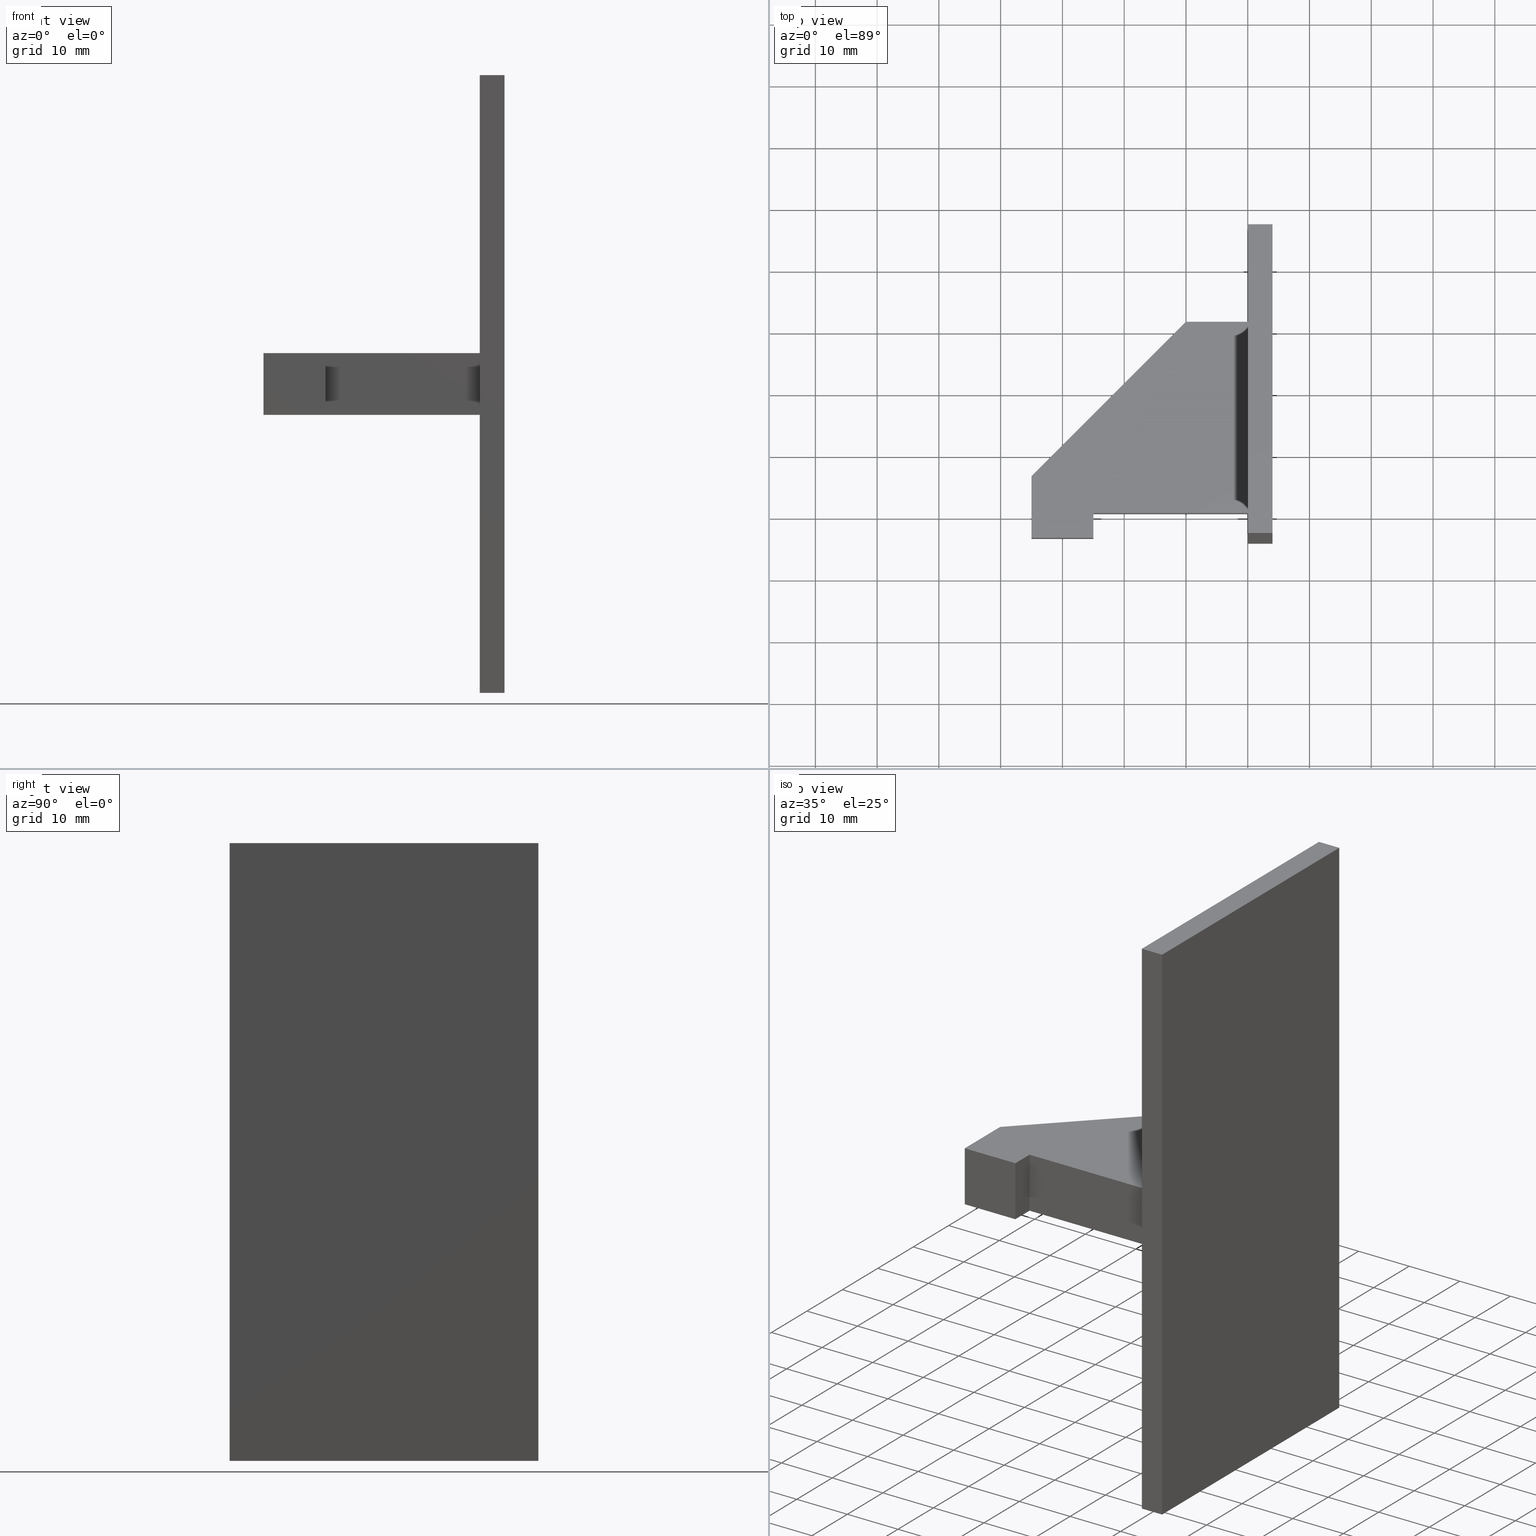
[diagram: canonical four-view strip — front | top / right | iso, engineering-drawing reading convention]
A machine part, canonical four-view strip (front | top / right | iso — engineering-drawing reading convention). The complete STEP part file that produces these views, byte-faithful:
ISO-10303-21;
HEADER;
/* Generated by software containing ST-Developer
 * from STEP Tools, Inc. (www.steptools.com) 
 */

FILE_DESCRIPTION(
/* description */ (''),
/* implementation_level */ '2;1');

FILE_NAME(
/* name */ 'E_3_01_06_08_00_WKZ-0170.stp',
/* time_stamp */ '2025-11-24T12:50:59+01:00',
/* author */ ('d.fischer'),
/* organization */ (''),
/* preprocessor_version */ 'ST-DEVELOPER v20',
/* originating_system */ 'Autodesk Inventor 2025',
/* authorisation */ '');

FILE_SCHEMA (('AUTOMOTIVE_DESIGN { 1 0 10303 214 3 1 1 }'));
ENDSEC;

DATA;
#10=MECHANICAL_DESIGN_GEOMETRIC_PRESENTATION_REPRESENTATION('',(#14,#15),
#434);
#11=SHAPE_REPRESENTATION_RELATIONSHIP('SRR','None',#441,#12);
#12=ADVANCED_BREP_SHAPE_REPRESENTATION('',(#13),#433);
#13=MANIFOLD_SOLID_BREP('Volumenk\X\F6rper1',#261);
#14=STYLED_ITEM('',(#451),#251);
#15=STYLED_ITEM('',(#450),#13);
#16=FACE_BOUND('',#32,.T.);
#17=FACE_OUTER_BOUND('',#31,.T.);
#18=FACE_OUTER_BOUND('',#33,.T.);
#19=FACE_OUTER_BOUND('',#34,.T.);
#20=FACE_OUTER_BOUND('',#35,.T.);
#21=FACE_OUTER_BOUND('',#36,.T.);
#22=FACE_OUTER_BOUND('',#37,.T.);
#23=FACE_OUTER_BOUND('',#38,.T.);
#24=FACE_OUTER_BOUND('',#39,.T.);
#25=FACE_OUTER_BOUND('',#40,.T.);
#26=FACE_OUTER_BOUND('',#41,.T.);
#27=FACE_OUTER_BOUND('',#42,.T.);
#28=FACE_OUTER_BOUND('',#43,.T.);
#29=FACE_OUTER_BOUND('',#44,.T.);
#30=FACE_OUTER_BOUND('',#45,.T.);
#31=EDGE_LOOP('',(#167,#168,#169,#170));
#32=EDGE_LOOP('',(#171,#172,#173,#174));
#33=EDGE_LOOP('',(#175,#176,#177,#178));
#34=EDGE_LOOP('',(#179,#180,#181,#182));
#35=EDGE_LOOP('',(#183,#184,#185,#186));
#36=EDGE_LOOP('',(#187,#188,#189,#190));
#37=EDGE_LOOP('',(#191,#192,#193,#194));
#38=EDGE_LOOP('',(#195,#196,#197,#198,#199,#200,#201));
#39=EDGE_LOOP('',(#202,#203,#204,#205));
#40=EDGE_LOOP('',(#206,#207,#208,#209));
#41=EDGE_LOOP('',(#210,#211,#212,#213));
#42=EDGE_LOOP('',(#214,#215,#216,#217));
#43=EDGE_LOOP('',(#218,#219,#220,#221));
#44=EDGE_LOOP('',(#222,#223,#224,#225));
#45=EDGE_LOOP('',(#226,#227,#228,#229,#230,#231,#232));
#46=LINE('',#365,#79);
#47=LINE('',#367,#80);
#48=LINE('',#369,#81);
#49=LINE('',#370,#82);
#50=LINE('',#373,#83);
#51=LINE('',#375,#84);
#52=LINE('',#377,#85);
#53=LINE('',#378,#86);
#54=LINE('',#382,#87);
#55=LINE('',#383,#88);
#56=LINE('',#384,#89);
#57=LINE('',#387,#90);
#58=LINE('',#388,#91);
#59=LINE('',#391,#92);
#60=LINE('',#392,#93);
#61=LINE('',#394,#94);
#62=LINE('',#398,#95);
#63=LINE('',#400,#96);
#64=LINE('',#402,#97);
#65=LINE('',#404,#98);
#66=LINE('',#406,#99);
#67=LINE('',#407,#100);
#68=LINE('',#411,#101);
#69=LINE('',#412,#102);
#70=LINE('',#413,#103);
#71=LINE('',#416,#104);
#72=LINE('',#417,#105);
#73=LINE('',#420,#106);
#74=LINE('',#421,#107);
#75=LINE('',#424,#108);
#76=LINE('',#425,#109);
#77=LINE('',#427,#110);
#78=LINE('',#429,#111);
#79=VECTOR('',#302,10.);
#80=VECTOR('',#303,10.);
#81=VECTOR('',#304,10.);
#82=VECTOR('',#305,10.);
#83=VECTOR('',#306,10.);
#84=VECTOR('',#307,10.);
#85=VECTOR('',#308,10.);
#86=VECTOR('',#309,10.);
#87=VECTOR('',#312,10.);
#88=VECTOR('',#313,10.);
#89=VECTOR('',#314,10.);
#90=VECTOR('',#317,10.);
#91=VECTOR('',#318,10.);
#92=VECTOR('',#321,10.);
#93=VECTOR('',#322,10.);
#94=VECTOR('',#325,10.);
#95=VECTOR('',#330,10.);
#96=VECTOR('',#331,10.);
#97=VECTOR('',#332,10.);
#98=VECTOR('',#333,10.);
#99=VECTOR('',#334,10.);
#100=VECTOR('',#335,10.);
#101=VECTOR('',#338,10.);
#102=VECTOR('',#339,10.);
#103=VECTOR('',#340,10.);
#104=VECTOR('',#343,10.);
#105=VECTOR('',#344,10.);
#106=VECTOR('',#347,10.);
#107=VECTOR('',#348,10.);
#108=VECTOR('',#351,10.);
#109=VECTOR('',#352,10.);
#110=VECTOR('',#355,10.);
#111=VECTOR('',#358,10.);
#112=VERTEX_POINT('',#363);
#113=VERTEX_POINT('',#364);
#114=VERTEX_POINT('',#366);
#115=VERTEX_POINT('',#368);
#116=VERTEX_POINT('',#371);
#117=VERTEX_POINT('',#372);
#118=VERTEX_POINT('',#374);
#119=VERTEX_POINT('',#376);
#120=VERTEX_POINT('',#380);
#121=VERTEX_POINT('',#381);
#122=VERTEX_POINT('',#386);
#123=VERTEX_POINT('',#390);
#124=VERTEX_POINT('',#397);
#125=VERTEX_POINT('',#399);
#126=VERTEX_POINT('',#401);
#127=VERTEX_POINT('',#403);
#128=VERTEX_POINT('',#405);
#129=VERTEX_POINT('',#409);
#130=VERTEX_POINT('',#410);
#131=VERTEX_POINT('',#415);
#132=VERTEX_POINT('',#419);
#133=VERTEX_POINT('',#423);
#134=EDGE_CURVE('',#112,#113,#46,.T.);
#135=EDGE_CURVE('',#114,#112,#47,.T.);
#136=EDGE_CURVE('',#115,#114,#48,.T.);
#137=EDGE_CURVE('',#113,#115,#49,.T.);
#138=EDGE_CURVE('',#116,#117,#50,.T.);
#139=EDGE_CURVE('',#118,#117,#51,.T.);
#140=EDGE_CURVE('',#118,#119,#52,.T.);
#141=EDGE_CURVE('',#116,#119,#53,.T.);
#142=EDGE_CURVE('',#120,#121,#54,.T.);
#143=EDGE_CURVE('',#114,#121,#55,.T.);
#144=EDGE_CURVE('',#112,#120,#56,.T.);
#145=EDGE_CURVE('',#121,#122,#57,.T.);
#146=EDGE_CURVE('',#115,#122,#58,.T.);
#147=EDGE_CURVE('',#122,#123,#59,.T.);
#148=EDGE_CURVE('',#113,#123,#60,.T.);
#149=EDGE_CURVE('',#123,#120,#61,.T.);
#150=EDGE_CURVE('',#124,#116,#62,.T.);
#151=EDGE_CURVE('',#125,#124,#63,.T.);
#152=EDGE_CURVE('',#126,#125,#64,.T.);
#153=EDGE_CURVE('',#127,#126,#65,.T.);
#154=EDGE_CURVE('',#128,#127,#66,.T.);
#155=EDGE_CURVE('',#117,#128,#67,.T.);
#156=EDGE_CURVE('',#129,#130,#68,.T.);
#157=EDGE_CURVE('',#130,#125,#69,.T.);
#158=EDGE_CURVE('',#129,#124,#70,.T.);
#159=EDGE_CURVE('',#130,#131,#71,.T.);
#160=EDGE_CURVE('',#131,#126,#72,.T.);
#161=EDGE_CURVE('',#131,#132,#73,.T.);
#162=EDGE_CURVE('',#132,#127,#74,.T.);
#163=EDGE_CURVE('',#132,#133,#75,.T.);
#164=EDGE_CURVE('',#133,#128,#76,.T.);
#165=EDGE_CURVE('',#133,#118,#77,.T.);
#166=EDGE_CURVE('',#119,#129,#78,.T.);
#167=ORIENTED_EDGE('',*,*,#134,.F.);
#168=ORIENTED_EDGE('',*,*,#135,.F.);
#169=ORIENTED_EDGE('',*,*,#136,.F.);
#170=ORIENTED_EDGE('',*,*,#137,.F.);
#171=ORIENTED_EDGE('',*,*,#138,.T.);
#172=ORIENTED_EDGE('',*,*,#139,.F.);
#173=ORIENTED_EDGE('',*,*,#140,.T.);
#174=ORIENTED_EDGE('',*,*,#141,.F.);
#175=ORIENTED_EDGE('',*,*,#142,.T.);
#176=ORIENTED_EDGE('',*,*,#143,.F.);
#177=ORIENTED_EDGE('',*,*,#135,.T.);
#178=ORIENTED_EDGE('',*,*,#144,.T.);
#179=ORIENTED_EDGE('',*,*,#145,.T.);
#180=ORIENTED_EDGE('',*,*,#146,.F.);
#181=ORIENTED_EDGE('',*,*,#136,.T.);
#182=ORIENTED_EDGE('',*,*,#143,.T.);
#183=ORIENTED_EDGE('',*,*,#147,.T.);
#184=ORIENTED_EDGE('',*,*,#148,.F.);
#185=ORIENTED_EDGE('',*,*,#137,.T.);
#186=ORIENTED_EDGE('',*,*,#146,.T.);
#187=ORIENTED_EDGE('',*,*,#149,.T.);
#188=ORIENTED_EDGE('',*,*,#144,.F.);
#189=ORIENTED_EDGE('',*,*,#134,.T.);
#190=ORIENTED_EDGE('',*,*,#148,.T.);
#191=ORIENTED_EDGE('',*,*,#142,.F.);
#192=ORIENTED_EDGE('',*,*,#149,.F.);
#193=ORIENTED_EDGE('',*,*,#147,.F.);
#194=ORIENTED_EDGE('',*,*,#145,.F.);
#195=ORIENTED_EDGE('',*,*,#138,.F.);
#196=ORIENTED_EDGE('',*,*,#150,.F.);
#197=ORIENTED_EDGE('',*,*,#151,.F.);
#198=ORIENTED_EDGE('',*,*,#152,.F.);
#199=ORIENTED_EDGE('',*,*,#153,.F.);
#200=ORIENTED_EDGE('',*,*,#154,.F.);
#201=ORIENTED_EDGE('',*,*,#155,.F.);
#202=ORIENTED_EDGE('',*,*,#156,.T.);
#203=ORIENTED_EDGE('',*,*,#157,.T.);
#204=ORIENTED_EDGE('',*,*,#151,.T.);
#205=ORIENTED_EDGE('',*,*,#158,.F.);
#206=ORIENTED_EDGE('',*,*,#159,.T.);
#207=ORIENTED_EDGE('',*,*,#160,.T.);
#208=ORIENTED_EDGE('',*,*,#152,.T.);
#209=ORIENTED_EDGE('',*,*,#157,.F.);
#210=ORIENTED_EDGE('',*,*,#161,.T.);
#211=ORIENTED_EDGE('',*,*,#162,.T.);
#212=ORIENTED_EDGE('',*,*,#153,.T.);
#213=ORIENTED_EDGE('',*,*,#160,.F.);
#214=ORIENTED_EDGE('',*,*,#163,.T.);
#215=ORIENTED_EDGE('',*,*,#164,.T.);
#216=ORIENTED_EDGE('',*,*,#154,.T.);
#217=ORIENTED_EDGE('',*,*,#162,.F.);
#218=ORIENTED_EDGE('',*,*,#165,.T.);
#219=ORIENTED_EDGE('',*,*,#139,.T.);
#220=ORIENTED_EDGE('',*,*,#155,.T.);
#221=ORIENTED_EDGE('',*,*,#164,.F.);
#222=ORIENTED_EDGE('',*,*,#166,.T.);
#223=ORIENTED_EDGE('',*,*,#158,.T.);
#224=ORIENTED_EDGE('',*,*,#150,.T.);
#225=ORIENTED_EDGE('',*,*,#141,.T.);
#226=ORIENTED_EDGE('',*,*,#156,.F.);
#227=ORIENTED_EDGE('',*,*,#166,.F.);
#228=ORIENTED_EDGE('',*,*,#140,.F.);
#229=ORIENTED_EDGE('',*,*,#165,.F.);
#230=ORIENTED_EDGE('',*,*,#163,.F.);
#231=ORIENTED_EDGE('',*,*,#161,.F.);
#232=ORIENTED_EDGE('',*,*,#159,.F.);
#233=PLANE('',#284);
#234=PLANE('',#285);
#235=PLANE('',#286);
#236=PLANE('',#287);
#237=PLANE('',#288);
#238=PLANE('',#289);
#239=PLANE('',#290);
#240=PLANE('',#291);
#241=PLANE('',#292);
#242=PLANE('',#293);
#243=PLANE('',#294);
#244=PLANE('',#295);
#245=PLANE('',#296);
#246=PLANE('',#297);
#247=ADVANCED_FACE('',(#17,#16),#233,.F.);
#248=ADVANCED_FACE('',(#18),#234,.T.);
#249=ADVANCED_FACE('',(#19),#235,.T.);
#250=ADVANCED_FACE('',(#20),#236,.T.);
#251=ADVANCED_FACE('',(#21),#237,.T.);
#252=ADVANCED_FACE('',(#22),#238,.T.);
#253=ADVANCED_FACE('',(#23),#239,.F.);
#254=ADVANCED_FACE('',(#24),#240,.T.);
#255=ADVANCED_FACE('',(#25),#241,.T.);
#256=ADVANCED_FACE('',(#26),#242,.T.);
#257=ADVANCED_FACE('',(#27),#243,.T.);
#258=ADVANCED_FACE('',(#28),#244,.T.);
#259=ADVANCED_FACE('',(#29),#245,.T.);
#260=ADVANCED_FACE('',(#30),#246,.T.);
#261=CLOSED_SHELL('',(#247,#248,#249,#250,#251,#252,#253,#254,#255,#256,
#257,#258,#259,#260));
#262=DERIVED_UNIT_ELEMENT(#265,1.);
#263=DERIVED_UNIT_ELEMENT(#436,-3.);
#264=DIMENSIONAL_EXPONENTS(0.,1.,0.,0.,0.,0.,0.);
#265=(
CONVERSION_BASED_UNIT('gram',#267)
MASS_UNIT()
NAMED_UNIT(#264)
);
#266=(
MASS_UNIT()
NAMED_UNIT(*)
SI_UNIT(.KILO.,.GRAM.)
);
#267=MASS_MEASURE_WITH_UNIT(MASS_MEASURE(0.001),#266);
#268=DERIVED_UNIT((#262,#263));
#269=MEASURE_REPRESENTATION_ITEM('density measure',
POSITIVE_RATIO_MEASURE(8.03),#268);
#270=PROPERTY_DEFINITION_REPRESENTATION(#275,#272);
#271=PROPERTY_DEFINITION_REPRESENTATION(#276,#273);
#272=REPRESENTATION('material name',(#274),#433);
#273=REPRESENTATION('density',(#269),#433);
#274=DESCRIPTIVE_REPRESENTATION_ITEM('1.4301','1.4301');
#275=PROPERTY_DEFINITION('material property','material name',#443);
#276=PROPERTY_DEFINITION('material property','density of part',#443);
#277=DATE_TIME_ROLE('creation_date');
#278=APPLIED_DATE_AND_TIME_ASSIGNMENT(#279,#277,(#443));
#279=DATE_AND_TIME(#280,#281);
#280=CALENDAR_DATE(2011,8,11);
#281=LOCAL_TIME(0,0,0.,#282);
#282=COORDINATED_UNIVERSAL_TIME_OFFSET(0,0,.BEHIND.);
#283=AXIS2_PLACEMENT_3D('',#361,#298,#299);
#284=AXIS2_PLACEMENT_3D('',#362,#300,#301);
#285=AXIS2_PLACEMENT_3D('',#379,#310,#311);
#286=AXIS2_PLACEMENT_3D('',#385,#315,#316);
#287=AXIS2_PLACEMENT_3D('',#389,#319,#320);
#288=AXIS2_PLACEMENT_3D('',#393,#323,#324);
#289=AXIS2_PLACEMENT_3D('',#395,#326,#327);
#290=AXIS2_PLACEMENT_3D('',#396,#328,#329);
#291=AXIS2_PLACEMENT_3D('',#408,#336,#337);
#292=AXIS2_PLACEMENT_3D('',#414,#341,#342);
#293=AXIS2_PLACEMENT_3D('',#418,#345,#346);
#294=AXIS2_PLACEMENT_3D('',#422,#349,#350);
#295=AXIS2_PLACEMENT_3D('',#426,#353,#354);
#296=AXIS2_PLACEMENT_3D('',#428,#356,#357);
#297=AXIS2_PLACEMENT_3D('',#430,#359,#360);
#298=DIRECTION('axis',(0.,0.,1.));
#299=DIRECTION('refdir',(1.,0.,0.));
#300=DIRECTION('center_axis',(1.,7.16272919113004E-17,-4.17313875595372E-33));
#301=DIRECTION('ref_axis',(-4.17313875595372E-33,0.,-1.));
#302=DIRECTION('',(0.,0.,-1.));
#303=DIRECTION('',(7.16272919113004E-17,-1.,-1.77635683940025E-16));
#304=DIRECTION('',(0.,0.,1.));
#305=DIRECTION('',(-7.16272919113004E-17,1.,-1.77635683940025E-16));
#306=DIRECTION('',(-7.16272919113004E-17,1.,0.));
#307=DIRECTION('',(0.,0.,-1.));
#308=DIRECTION('',(7.16272919113004E-17,-1.,0.));
#309=DIRECTION('',(0.,0.,1.));
#310=DIRECTION('center_axis',(2.46519032881566E-32,-1.77635683940025E-16,
1.));
#311=DIRECTION('ref_axis',(1.,0.,-2.46519032881566E-32));
#312=DIRECTION('',(-7.16272919113004E-17,1.,1.77635683940025E-16));
#313=DIRECTION('',(1.,1.38777878078145E-16,0.));
#314=DIRECTION('',(1.,1.38777878078145E-16,0.));
#315=DIRECTION('center_axis',(-1.38777878078145E-16,1.,0.));
#316=DIRECTION('ref_axis',(0.,0.,1.));
#317=DIRECTION('',(0.,0.,-1.));
#318=DIRECTION('',(1.,1.38777878078145E-16,0.));
#319=DIRECTION('center_axis',(2.46519032881566E-32,-1.77635683940025E-16,
-1.));
#320=DIRECTION('ref_axis',(-1.,0.,-2.46519032881566E-32));
#321=DIRECTION('',(7.16272919113004E-17,-1.,1.77635683940025E-16));
#322=DIRECTION('',(1.,1.38777878078145E-16,0.));
#323=DIRECTION('center_axis',(1.38777878078145E-16,-1.,0.));
#324=DIRECTION('ref_axis',(0.,0.,-1.));
#325=DIRECTION('',(0.,0.,1.));
#326=DIRECTION('center_axis',(1.,7.16272919113004E-17,-4.35829508300968E-33));
#327=DIRECTION('ref_axis',(-4.35829508300968E-33,0.,-1.));
#328=DIRECTION('center_axis',(0.,0.,1.));
#329=DIRECTION('ref_axis',(1.,0.,0.));
#330=DIRECTION('',(1.,8.88178419700125E-17,0.));
#331=DIRECTION('',(0.,1.,0.));
#332=DIRECTION('',(1.,0.,0.));
#333=DIRECTION('',(1.33226762955019E-15,-1.,0.));
#334=DIRECTION('',(-0.707106781186548,-0.707106781186547,0.));
#335=DIRECTION('',(-1.,0.,0.));
#336=DIRECTION('center_axis',(1.,0.,0.));
#337=DIRECTION('ref_axis',(0.,0.,-1.));
#338=DIRECTION('',(0.,-1.,0.));
#339=DIRECTION('',(0.,0.,-1.));
#340=DIRECTION('',(0.,0.,-1.));
#341=DIRECTION('center_axis',(0.,-1.,0.));
#342=DIRECTION('ref_axis',(0.,0.,-1.));
#343=DIRECTION('',(-1.,0.,0.));
#344=DIRECTION('',(0.,0.,-1.));
#345=DIRECTION('center_axis',(-1.,-1.33226762955019E-15,0.));
#346=DIRECTION('ref_axis',(0.,0.,1.));
#347=DIRECTION('',(-1.33226762955019E-15,1.,0.));
#348=DIRECTION('',(0.,0.,-1.));
#349=DIRECTION('center_axis',(-0.707106781186547,0.707106781186548,0.));
#350=DIRECTION('ref_axis',(0.,0.,1.));
#351=DIRECTION('',(0.707106781186548,0.707106781186547,0.));
#352=DIRECTION('',(0.,0.,-1.));
#353=DIRECTION('center_axis',(0.,1.,0.));
#354=DIRECTION('ref_axis',(0.,0.,1.));
#355=DIRECTION('',(1.,0.,0.));
#356=DIRECTION('center_axis',(8.88178419700125E-17,-1.,0.));
#357=DIRECTION('ref_axis',(0.,0.,-1.));
#358=DIRECTION('',(-1.,-8.88178419700125E-17,0.));
#359=DIRECTION('center_axis',(0.,0.,1.));
#360=DIRECTION('ref_axis',(1.,0.,0.));
#361=CARTESIAN_POINT('',(0.,0.,0.));
#362=CARTESIAN_POINT('Origin',(-1.50417313013731E-15,21.,0.));
#363=CARTESIAN_POINT('',(2.86509167645202E-16,-4.,50.));
#364=CARTESIAN_POINT('',(2.86509167645202E-16,-4.,-50.));
#365=CARTESIAN_POINT('',(2.86509167645202E-16,-4.,50.));
#366=CARTESIAN_POINT('',(-3.29485542791982E-15,46.,50.));
#367=CARTESIAN_POINT('',(-3.29485542791982E-15,46.,50.));
#368=CARTESIAN_POINT('',(-3.29485542791982E-15,46.,-50.));
#369=CARTESIAN_POINT('',(-3.29485542791982E-15,46.,-50.));
#370=CARTESIAN_POINT('',(2.86509167645202E-16,-4.,-50.));
#371=CARTESIAN_POINT('',(0.,0.,-5.));
#372=CARTESIAN_POINT('',(-2.22044604925031E-15,31.,-5.));
#373=CARTESIAN_POINT('',(-2.22044604925031E-15,31.,-5.));
#374=CARTESIAN_POINT('',(-2.22044604925031E-15,31.,5.));
#375=CARTESIAN_POINT('',(-2.22044604925031E-15,31.,0.));
#376=CARTESIAN_POINT('',(0.,0.,5.));
#377=CARTESIAN_POINT('',(-2.22044604925031E-15,31.,5.));
#378=CARTESIAN_POINT('',(0.,0.,0.));
#379=CARTESIAN_POINT('Origin',(2.86509167645202E-16,-4.,50.));
#380=CARTESIAN_POINT('',(4.,-4.,50.));
#381=CARTESIAN_POINT('',(4.,46.,50.));
#382=CARTESIAN_POINT('',(4.,46.,50.));
#383=CARTESIAN_POINT('',(-3.29485542791982E-15,46.,50.));
#384=CARTESIAN_POINT('',(2.86509167645202E-16,-4.,50.));
#385=CARTESIAN_POINT('Origin',(-3.29485542791982E-15,46.,50.));
#386=CARTESIAN_POINT('',(4.,46.,-50.));
#387=CARTESIAN_POINT('',(4.,46.,-50.));
#388=CARTESIAN_POINT('',(-3.29485542791982E-15,46.,-50.));
#389=CARTESIAN_POINT('Origin',(-3.29485542791982E-15,46.,-50.));
#390=CARTESIAN_POINT('',(4.,-4.,-50.));
#391=CARTESIAN_POINT('',(4.,-4.,-50.));
#392=CARTESIAN_POINT('',(2.86509167645202E-16,-4.,-50.));
#393=CARTESIAN_POINT('Origin',(2.86509167645202E-16,-4.,-50.));
#394=CARTESIAN_POINT('',(4.,-4.,50.));
#395=CARTESIAN_POINT('Origin',(4.,21.,0.));
#396=CARTESIAN_POINT('Origin',(-15.2206929768812,11.2206929768812,-5.));
#397=CARTESIAN_POINT('',(-25.,-2.22044604925031E-15,-5.));
#398=CARTESIAN_POINT('',(0.,0.,-5.));
#399=CARTESIAN_POINT('',(-25.,-4.,-5.));
#400=CARTESIAN_POINT('',(-25.,-2.22044604925031E-15,-5.));
#401=CARTESIAN_POINT('',(-35.,-4.,-5.));
#402=CARTESIAN_POINT('',(-25.,-4.,-5.));
#403=CARTESIAN_POINT('',(-35.,6.,-5.));
#404=CARTESIAN_POINT('',(-35.,-4.,-5.));
#405=CARTESIAN_POINT('',(-10.,31.,-5.));
#406=CARTESIAN_POINT('',(-35.,6.,-5.));
#407=CARTESIAN_POINT('',(-10.,31.,-5.));
#408=CARTESIAN_POINT('Origin',(-25.,-2.22044604925031E-15,0.));
#409=CARTESIAN_POINT('',(-25.,-2.22044604925031E-15,5.));
#410=CARTESIAN_POINT('',(-25.,-4.,5.));
#411=CARTESIAN_POINT('',(-25.,-2.22044604925031E-15,5.));
#412=CARTESIAN_POINT('',(-25.,-4.,0.));
#413=CARTESIAN_POINT('',(-25.,-2.22044604925031E-15,0.));
#414=CARTESIAN_POINT('Origin',(-25.,-4.,0.));
#415=CARTESIAN_POINT('',(-35.,-4.,5.));
#416=CARTESIAN_POINT('',(-25.,-4.,5.));
#417=CARTESIAN_POINT('',(-35.,-4.,0.));
#418=CARTESIAN_POINT('Origin',(-35.,-4.,0.));
#419=CARTESIAN_POINT('',(-35.,6.,5.));
#420=CARTESIAN_POINT('',(-35.,-4.,5.));
#421=CARTESIAN_POINT('',(-35.,6.,0.));
#422=CARTESIAN_POINT('Origin',(-35.,6.,0.));
#423=CARTESIAN_POINT('',(-10.,31.,5.));
#424=CARTESIAN_POINT('',(-35.,6.,5.));
#425=CARTESIAN_POINT('',(-10.,31.,0.));
#426=CARTESIAN_POINT('Origin',(-10.,31.,0.));
#427=CARTESIAN_POINT('',(-10.,31.,5.));
#428=CARTESIAN_POINT('Origin',(0.,0.,0.));
#429=CARTESIAN_POINT('',(0.,0.,5.));
#430=CARTESIAN_POINT('Origin',(-15.2206929768812,11.2206929768812,5.));
#431=UNCERTAINTY_MEASURE_WITH_UNIT(LENGTH_MEASURE(0.01),#435,
'DISTANCE_ACCURACY_VALUE',
'Maximum model space distance between geometric entities at asserted c
onnectivities');
#432=UNCERTAINTY_MEASURE_WITH_UNIT(LENGTH_MEASURE(0.01),#435,
'DISTANCE_ACCURACY_VALUE',
'Maximum model space distance between geometric entities at asserted c
onnectivities');
#433=(
GEOMETRIC_REPRESENTATION_CONTEXT(3)
GLOBAL_UNCERTAINTY_ASSIGNED_CONTEXT((#431))
GLOBAL_UNIT_ASSIGNED_CONTEXT((#435,#437,#438))
REPRESENTATION_CONTEXT('','3D')
);
#434=(
GEOMETRIC_REPRESENTATION_CONTEXT(3)
GLOBAL_UNCERTAINTY_ASSIGNED_CONTEXT((#432))
GLOBAL_UNIT_ASSIGNED_CONTEXT((#435,#437,#438))
REPRESENTATION_CONTEXT('','3D')
);
#435=(
LENGTH_UNIT()
NAMED_UNIT(*)
SI_UNIT(.MILLI.,.METRE.)
);
#436=(
LENGTH_UNIT()
NAMED_UNIT(*)
SI_UNIT(.CENTI.,.METRE.)
);
#437=(
NAMED_UNIT(*)
PLANE_ANGLE_UNIT()
SI_UNIT($,.RADIAN.)
);
#438=(
NAMED_UNIT(*)
SI_UNIT($,.STERADIAN.)
SOLID_ANGLE_UNIT()
);
#439=SHAPE_DEFINITION_REPRESENTATION(#440,#441);
#440=PRODUCT_DEFINITION_SHAPE('',$,#443);
#441=SHAPE_REPRESENTATION('',(#283),#433);
#442=PRODUCT_DEFINITION_CONTEXT('part definition',#447,'design');
#443=PRODUCT_DEFINITION('WKZ-0170','E_3_01_06_08_00_WKZ-0170',#444,#442);
#444=PRODUCT_DEFINITION_FORMATION('',$,#449);
#445=PRODUCT_RELATED_PRODUCT_CATEGORY('E_3_01_06_08_00_WKZ-0170',
'E_3_01_06_08_00_WKZ-0170',(#449));
#446=APPLICATION_PROTOCOL_DEFINITION('international standard',
'automotive_design',2009,#447);
#447=APPLICATION_CONTEXT(
'Core Data for Automotive Mechanical Design Process');
#448=PRODUCT_CONTEXT('part definition',#447,'mechanical');
#449=PRODUCT('WKZ-0170','E_3_01_06_08_00_WKZ-0170',$,(#448));
#450=PRESENTATION_STYLE_ASSIGNMENT((#452));
#451=PRESENTATION_STYLE_ASSIGNMENT((#453));
#452=SURFACE_STYLE_USAGE(.BOTH.,#456);
#453=SURFACE_STYLE_USAGE(.BOTH.,#457);
#454=SURFACE_STYLE_RENDERING_WITH_PROPERTIES($,#464,(#455));
#455=SURFACE_STYLE_TRANSPARENT(0.);
#456=SURFACE_SIDE_STYLE('',(#458,#454));
#457=SURFACE_SIDE_STYLE('',(#459));
#458=SURFACE_STYLE_FILL_AREA(#460);
#459=SURFACE_STYLE_FILL_AREA(#461);
#460=FILL_AREA_STYLE('',(#462));
#461=FILL_AREA_STYLE('',(#463));
#462=FILL_AREA_STYLE_COLOUR('',#464);
#463=FILL_AREA_STYLE_COLOUR('',#465);
#464=COLOUR_RGB('',0.92156862745098,0.92156862745098,0.92156862745098);
#465=COLOUR_RGB('',0.16078431372549,0.16078431372549,0.16078431372549);
ENDSEC;
END-ISO-10303-21;
